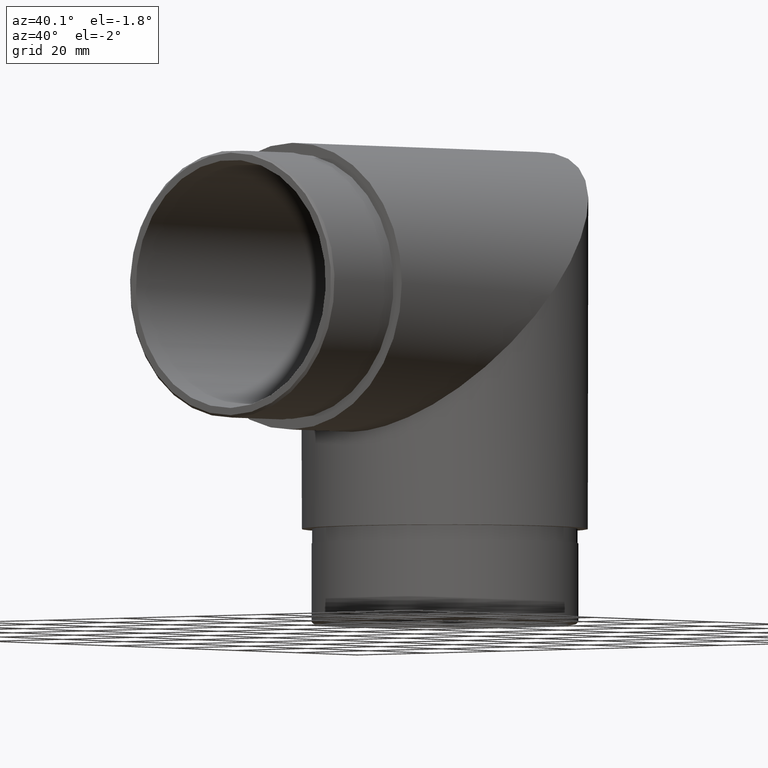
[diagram: clean part render]
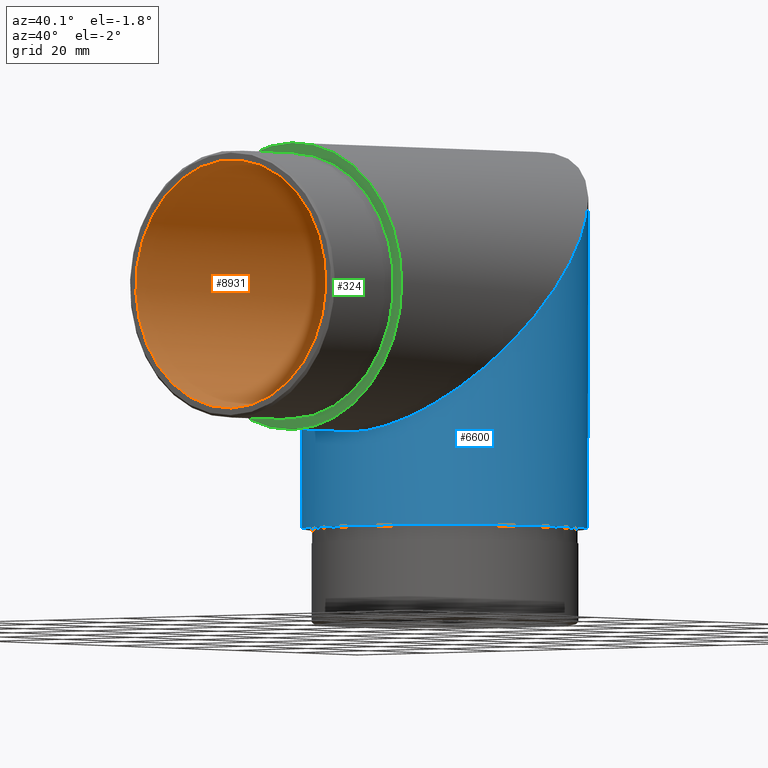
[diagram: same view with three faces highlighted in distinct colors, each labeled with its STEP entity id]
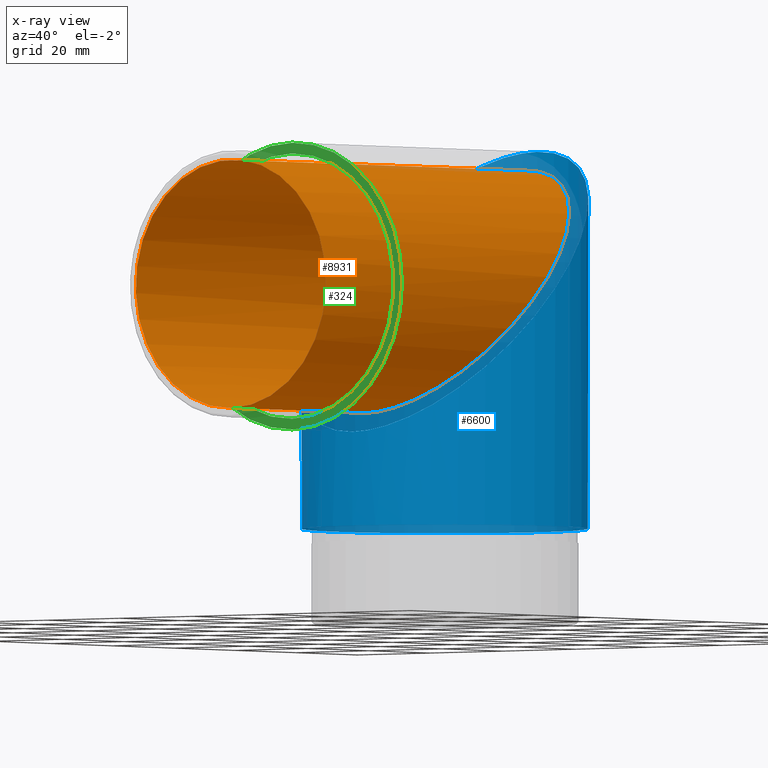
[diagram: x-ray of the same camera — body ghosted, the three highlighted faces saturated]
A machine part, auxiliary view with three faces highlighted in distinct colors.
The next image is the same camera in x-ray (body ghosted, the three faces saturated) — at least one of them is partly hidden behind the body in this view.
Their STEP definitions:

[orange] entity #8931 — the highlighted cylindrical surface (bore or boss wall) has radius 26.1 mm, axis along (-0, -1, -0).
#403 = CARTESIAN_POINT ( 'NONE',  ( 52.19999999999998900, 75.95000000000010200, 26.10000000000001200 ) ) ;
#460 = CIRCLE ( 'NONE', #10182, 26.09999999999999800 ) ;
#1122 = CARTESIAN_POINT ( 'NONE',  ( -52.19999999999998900, 23.74999999999991100, -26.10000000000000100 ) ) ;
#1272 = CARTESIAN_POINT ( 'NONE',  ( 52.19999999999998900, 23.74999999999991100, -26.10000000000000100 ) ) ;
#1514 = CYLINDRICAL_SURFACE ( 'NONE', #8582, 26.09999999999999800 ) ;
#1946 = DIRECTION ( 'NONE',  ( -0.0000000000000000000, -1.000000000000000000, -0.0000000000000000000 ) ) ;
#1957 = CARTESIAN_POINT ( 'NONE',  ( 0.0000000000000000000, -20.00000000000000000, 0.0000000000000000000 ) ) ;
#2665 = DIRECTION ( 'NONE',  ( 0.0000000000000000000, 0.0000000000000000000, -1.000000000000000000 ) ) ;
#2855 = CARTESIAN_POINT ( 'NONE',  ( 0.0000000000000000000, 23.74999999999991100, -26.10000000000000100 ) ) ;
#2971 = CARTESIAN_POINT ( 'NONE',  ( 0.0000000000000000000, 23.74999999999991100, -26.10000000000000100 ) ) ;
#3391 = VERTEX_POINT ( 'NONE', #10780 ) ;
#3712 = DIRECTION ( 'NONE',  ( 0.0000000000000000000, 0.0000000000000000000, -1.000000000000000000 ) ) ;
#3729 = CARTESIAN_POINT ( 'NONE',  ( -52.19999999999998900, 75.95000000000010200, 26.09999999999999400 ) ) ;
#3971 = ORIENTED_EDGE ( 'NONE', *, *, #7358, .T. ) ;
#4391 = EDGE_LOOP ( 'NONE', ( #6825 ) ) ;
#5680 = EDGE_CURVE ( 'NONE', #8382, #8382, #460, .T. ) ;
#6255 = CARTESIAN_POINT ( 'NONE',  ( 0.0000000000000000000, 135.1270778110976500, 0.0000000000000000000 ) ) ;
#6644 = FACE_OUTER_BOUND ( 'NONE', #8525, .T. ) ;
#6825 = ORIENTED_EDGE ( 'NONE', *, *, #5680, .T. ) ;
#7358 = EDGE_CURVE ( 'NONE', #3391, #3391, #8713, .T. ) ;
#8382 = VERTEX_POINT ( 'NONE', #8948 ) ;
#8525 = EDGE_LOOP ( 'NONE', ( #3971 ) ) ;
#8582 = AXIS2_PLACEMENT_3D ( 'NONE', #6255, #1946, #2665 ) ;
#8713 =( BOUNDED_CURVE ( )  B_SPLINE_CURVE ( 3, ( #2971, #1122, #3729, #10946, #403, #1272, #2855 ),
 .UNSPECIFIED., .T., .T. ) 
 B_SPLINE_CURVE_WITH_KNOTS ( ( 4, 3, 4 ),
 ( 0.0000000000000000000, 3.141592653589793100, 6.283185307179586200 ),
 .UNSPECIFIED. ) 
 CURVE ( )  GEOMETRIC_REPRESENTATION_ITEM ( )  RATIONAL_B_SPLINE_CURVE ( ( 1.000000000000000000, 0.3333333333333333700, 0.3333333333333333700, 1.000000000000000000, 0.3333333333333333700, 0.3333333333333333700, 1.000000000000000000 ) ) 
 REPRESENTATION_ITEM ( '' )  );
#8931 = ADVANCED_FACE ( 'NONE', ( #6644, #11097 ), #1514, .F. ) ;
#8948 = CARTESIAN_POINT ( 'NONE',  ( 0.0000000000000000000, -20.00000000000000000, -26.09999999999999800 ) ) ;
#9864 = DIRECTION ( 'NONE',  ( 0.0000000000000000000, -1.000000000000000000, 0.0000000000000000000 ) ) ;
#10182 = AXIS2_PLACEMENT_3D ( 'NONE', #1957, #9864, #3712 ) ;
#10780 = CARTESIAN_POINT ( 'NONE',  ( 0.0000000000000000000, 23.74999999999991100, -26.10000000000000100 ) ) ;
#10946 = CARTESIAN_POINT ( 'NONE',  ( -3.196328145774591500E-015, 75.95000000000010200, 26.10000000000000100 ) ) ;
#11097 = FACE_OUTER_BOUND ( 'NONE', #4391, .T. ) ;

[blue] entity #6600 — the highlighted cylindrical surface (bore or boss wall) has radius 30.15 mm, axis along (0, -0, -1).
#8 = CARTESIAN_POINT ( 'NONE',  ( -3.692310099429270400E-015, 80.00000000000011400, 30.14999999999999500 ) ) ;
#719 = CYLINDRICAL_SURFACE ( 'NONE', #10478, 30.14999999999999500 ) ;
#835 = CARTESIAN_POINT ( 'NONE',  ( -60.29999999999999000, 19.69999999999990000, -30.14999999999999500 ) ) ;
#1350 = VERTEX_POINT ( 'NONE', #3646 ) ;
#1469 = EDGE_LOOP ( 'NONE', ( #3229 ) ) ;
#1486 = CARTESIAN_POINT ( 'NONE',  ( 0.0000000000000000000, 49.84999999999982400, -49.85000000000000900 ) ) ;
#1807 = ORIENTED_EDGE ( 'NONE', *, *, #8310, .T. ) ;
#2429 =( BOUNDED_CURVE ( )  B_SPLINE_CURVE ( 3, ( #2746, #835, #4409, #8, #6216, #8839, #3540 ),
 .UNSPECIFIED., .T., .F. ) 
 B_SPLINE_CURVE_WITH_KNOTS ( ( 4, 3, 4 ),
 ( 0.0000000000000000000, 3.141592653589793100, 6.283185307179586200 ),
 .UNSPECIFIED. ) 
 CURVE ( )  GEOMETRIC_REPRESENTATION_ITEM ( )  RATIONAL_B_SPLINE_CURVE ( ( 1.000000000000000000, 0.3333333333333333700, 0.3333333333333333700, 1.000000000000000000, 0.3333333333333333700, 0.3333333333333333700, 1.000000000000000000 ) ) 
 REPRESENTATION_ITEM ( '' )  );
#2746 = CARTESIAN_POINT ( 'NONE',  ( 0.0000000000000000000, 19.69999999999990000, -30.14999999999999500 ) ) ;
#3229 = ORIENTED_EDGE ( 'NONE', *, *, #6294, .T. ) ;
#3307 = FACE_OUTER_BOUND ( 'NONE', #7815, .T. ) ;
#3540 = CARTESIAN_POINT ( 'NONE',  ( 0.0000000000000000000, 19.69999999999990000, -30.14999999999999500 ) ) ;
#3646 = CARTESIAN_POINT ( 'NONE',  ( 0.0000000000000000000, 19.69999999999990000, -30.14999999999999500 ) ) ;
#4281 = DIRECTION ( 'NONE',  ( 0.0000000000000000000, -3.619082076260539800E-015, -1.000000000000000000 ) ) ;
#4409 = CARTESIAN_POINT ( 'NONE',  ( -60.30000000000001100, 80.00000000000009900, 30.14999999999999500 ) ) ;
#5447 = CARTESIAN_POINT ( 'NONE',  ( 0.0000000000000000000, 79.99999999999981500, -49.85000000000011500 ) ) ;
#5551 = FACE_OUTER_BOUND ( 'NONE', #1469, .T. ) ;
#6216 = CARTESIAN_POINT ( 'NONE',  ( 60.29999999999999000, 80.00000000000012800, 30.15000000000000600 ) ) ;
#6294 = EDGE_CURVE ( 'NONE', #1350, #1350, #2429, .T. ) ;
#6491 = AXIS2_PLACEMENT_3D ( 'NONE', #1486, #7659, #7699 ) ;
#6600 = ADVANCED_FACE ( 'NONE', ( #5551, #3307 ), #719, .T. ) ;
#7046 = CIRCLE ( 'NONE', #6491, 30.14999999999999500 ) ;
#7659 = DIRECTION ( 'NONE',  ( -0.0000000000000000000, 3.619082076260539800E-015, 1.000000000000000000 ) ) ;
#7699 = DIRECTION ( 'NONE',  ( 0.0000000000000000000, 1.000000000000000000, -3.682331756634019400E-015 ) ) ;
#7815 = EDGE_LOOP ( 'NONE', ( #1807 ) ) ;
#8310 = EDGE_CURVE ( 'NONE', #11090, #11090, #7046, .T. ) ;
#8839 = CARTESIAN_POINT ( 'NONE',  ( 60.29999999999999000, 19.69999999999990000, -30.14999999999999500 ) ) ;
#9562 = CARTESIAN_POINT ( 'NONE',  ( 0.0000000000000000000, 49.85000000000000900, 0.0000000000000000000 ) ) ;
#10478 = AXIS2_PLACEMENT_3D ( 'NONE', #9562, #4281, #10488 ) ;
#10488 = DIRECTION ( 'NONE',  ( 0.0000000000000000000, 1.000000000000000000, -3.619082076260540600E-015 ) ) ;
#11090 = VERTEX_POINT ( 'NONE', #5447 ) ;

[green] entity #324 — the highlighted planar face has unit normal (0, 1, 0).
#324 = ADVANCED_FACE ( 'NONE', ( #9051, #6050 ), #8335, .F. ) ;
#451 = AXIS2_PLACEMENT_3D ( 'NONE', #950, #7058, #5260 ) ;
#553 = VERTEX_POINT ( 'NONE', #5409 ) ;
#950 = CARTESIAN_POINT ( 'NONE',  ( 0.0000000000000000000, 0.0000000000000000000, 0.0000000000000000000 ) ) ;
#1215 = DIRECTION ( 'NONE',  ( 0.0000000000000000000, -0.0000000000000000000, 1.000000000000000000 ) ) ;
#2340 = CIRCLE ( 'NONE', #8213, 30.14999999999999900 ) ;
#2845 = EDGE_CURVE ( 'NONE', #553, #553, #9887, .T. ) ;
#3369 = EDGE_LOOP ( 'NONE', ( #9633 ) ) ;
#4795 = AXIS2_PLACEMENT_3D ( 'NONE', #10212, #11003, #1215 ) ;
#5260 = DIRECTION ( 'NONE',  ( 0.0000000000000000000, 0.0000000000000000000, 1.000000000000000000 ) ) ;
#5409 = CARTESIAN_POINT ( 'NONE',  ( 0.0000000000000000000, 0.0000000000000000000, 27.89999999999999900 ) ) ;
#6050 = FACE_BOUND ( 'NONE', #3369, .T. ) ;
#6172 = CARTESIAN_POINT ( 'NONE',  ( 0.0000000000000000000, 0.0000000000000000000, 30.14999999999999900 ) ) ;
#6743 = ORIENTED_EDGE ( 'NONE', *, *, #8308, .F. ) ;
#7058 = DIRECTION ( 'NONE',  ( -0.0000000000000000000, -1.000000000000000000, -0.0000000000000000000 ) ) ;
#8213 = AXIS2_PLACEMENT_3D ( 'NONE', #9366, #11155, #11319 ) ;
#8308 = EDGE_CURVE ( 'NONE', #10232, #10232, #2340, .T. ) ;
#8335 = PLANE ( 'NONE',  #4795 ) ;
#9051 = FACE_OUTER_BOUND ( 'NONE', #11304, .T. ) ;
#9366 = CARTESIAN_POINT ( 'NONE',  ( 0.0000000000000000000, 0.0000000000000000000, 0.0000000000000000000 ) ) ;
#9633 = ORIENTED_EDGE ( 'NONE', *, *, #2845, .F. ) ;
#9887 = CIRCLE ( 'NONE', #451, 27.89999999999999900 ) ;
#10212 = CARTESIAN_POINT ( 'NONE',  ( 0.0000000000000000000, 0.0000000000000000000, 0.0000000000000000000 ) ) ;
#10232 = VERTEX_POINT ( 'NONE', #6172 ) ;
#11003 = DIRECTION ( 'NONE',  ( 0.0000000000000000000, 1.000000000000000000, 0.0000000000000000000 ) ) ;
#11155 = DIRECTION ( 'NONE',  ( 0.0000000000000000000, 1.000000000000000000, 0.0000000000000000000 ) ) ;
#11304 = EDGE_LOOP ( 'NONE', ( #6743 ) ) ;
#11319 = DIRECTION ( 'NONE',  ( 0.0000000000000000000, 0.0000000000000000000, 1.000000000000000000 ) ) ;